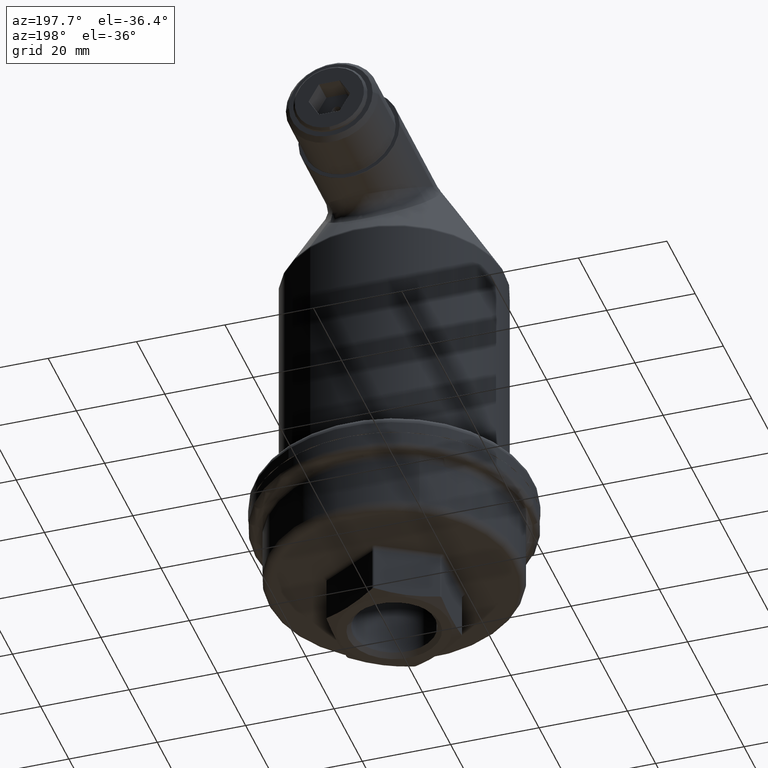
[diagram: clean part render]
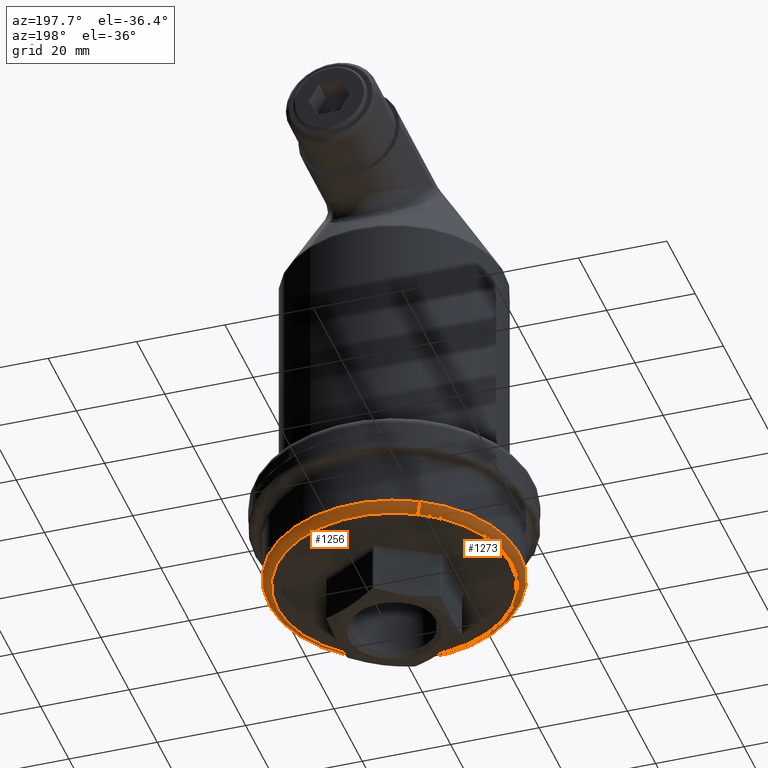
[diagram: same view with one multi-face feature highlighted, each face labeled with its STEP entity id]
A machine part, auxiliary view. The highlighted faces form ONE feature: a constant-radius fillet chain: 2 tangent blend faces with common blend radius 2 mm. The faces share edges in the B-rep.
Their STEP definitions:
[1] entity #1256 (Torus):
#1204=AXIS2_PLACEMENT_3D('Circle Axis2P3D',#1202,#1203,$) ;
#1229=AXIS2_PLACEMENT_3D('Torus Axis2P3D',#1226,#1227,#1228) ;
#1233=AXIS2_PLACEMENT_3D('Circle Axis2P3D',#1231,#1232,$) ;
#1240=AXIS2_PLACEMENT_3D('Circle Axis2P3D',#1238,#1239,$) ;
#1247=AXIS2_PLACEMENT_3D('Circle Axis2P3D',#1245,#1246,$) ;
#1197=CARTESIAN_POINT('Vertex',(-12.704776773,23.2559378901,12.)) ;
#1199=CARTESIAN_POINT('Vertex',(12.7047768322,-23.2559378578,12.)) ;
#1202=CARTESIAN_POINT('Axis2P3D Location',(-2.77555756156E-016,-4.82947015712E-015,12.)) ;
#1226=CARTESIAN_POINT('Axis2P3D Location',(3.5527136788E-015,-5.3290705182E-015,14.)) ;
#1231=CARTESIAN_POINT('Axis2P3D Location',(12.7047767747,-23.2559378892,14.)) ;
#1235=CARTESIAN_POINT('Vertex',(13.6636278502,-25.0111030139,14.)) ;
#1238=CARTESIAN_POINT('Axis2P3D Location',(-12.704776773,23.2559378901,14.)) ;
#1242=CARTESIAN_POINT('Vertex',(-13.6636278502,25.0111030139,14.)) ;
#1245=CARTESIAN_POINT('Axis2P3D Location',(3.5527136788E-015,-5.3290705182E-015,14.)) ;
#1203=DIRECTION('Axis2P3D Direction',(0.,0.,1.)) ;
#1227=DIRECTION('Axis2P3D Direction',(0.,0.,1.)) ;
#1228=DIRECTION('Axis2P3D XDirection',(0.00337020276418,-0.999994320851,0.)) ;
#1232=DIRECTION('Axis2P3D Direction',(-0.877582561855,-0.479425538668,0.)) ;
#1239=DIRECTION('Axis2P3D Direction',(0.87758256189,0.479425538604,-0.)) ;
#1246=DIRECTION('Axis2P3D Direction',(0.,0.,1.)) ;
#1251=ORIENTED_EDGE('',*,*,#1237,.T.) ;
#1252=ORIENTED_EDGE('',*,*,#1206,.T.) ;
#1253=ORIENTED_EDGE('',*,*,#1244,.F.) ;
#1254=ORIENTED_EDGE('',*,*,#1249,.F.) ;
#1256=ADVANCED_FACE('Hauptk\X2\00F6\X0\rper',(#1255),#1230,.T.) ;
#1205=CIRCLE('generated circle',#1204,26.5) ;
#1234=CIRCLE('generated circle',#1233,2.) ;
#1241=CIRCLE('generated circle',#1240,2.) ;
#1248=CIRCLE('generated circle',#1247,28.5) ;
#1230=TOROIDAL_SURFACE('homeo Torus',#1229,26.5,2.) ;
#1206=EDGE_CURVE('',#1200,#1198,#1205,.T.) ;
#1237=EDGE_CURVE('',#1236,#1200,#1234,.F.) ;
#1244=EDGE_CURVE('',#1243,#1198,#1241,.F.) ;
#1249=EDGE_CURVE('',#1236,#1243,#1248,.T.) ;
#1250=EDGE_LOOP('',(#1251,#1252,#1253,#1254)) ;
#1255=FACE_OUTER_BOUND('',#1250,.T.) ;
#1198=VERTEX_POINT('',#1197) ;
#1200=VERTEX_POINT('',#1199) ;
#1236=VERTEX_POINT('',#1235) ;
#1243=VERTEX_POINT('',#1242) ;
[2] entity #1273 (Torus):
#1195=AXIS2_PLACEMENT_3D('Circle Axis2P3D',#1193,#1194,$) ;
#1233=AXIS2_PLACEMENT_3D('Circle Axis2P3D',#1231,#1232,$) ;
#1240=AXIS2_PLACEMENT_3D('Circle Axis2P3D',#1238,#1239,$) ;
#1260=AXIS2_PLACEMENT_3D('Torus Axis2P3D',#1257,#1258,#1259) ;
#1264=AXIS2_PLACEMENT_3D('Circle Axis2P3D',#1262,#1263,$) ;
#1193=CARTESIAN_POINT('Axis2P3D Location',(-1.33226762955E-015,2.22044604925E-015,12.)) ;
#1197=CARTESIAN_POINT('Vertex',(-12.704776773,23.2559378901,12.)) ;
#1199=CARTESIAN_POINT('Vertex',(12.7047768322,-23.2559378578,12.)) ;
#1231=CARTESIAN_POINT('Axis2P3D Location',(12.7047767747,-23.2559378892,14.)) ;
#1235=CARTESIAN_POINT('Vertex',(13.6636278502,-25.0111030139,14.)) ;
#1238=CARTESIAN_POINT('Axis2P3D Location',(-12.704776773,23.2559378901,14.)) ;
#1242=CARTESIAN_POINT('Vertex',(-13.6636278502,25.0111030139,14.)) ;
#1257=CARTESIAN_POINT('Axis2P3D Location',(3.5527136788E-015,-3.5527136788E-015,14.)) ;
#1262=CARTESIAN_POINT('Axis2P3D Location',(3.5527136788E-015,-3.5527136788E-015,14.)) ;
#1194=DIRECTION('Axis2P3D Direction',(0.,0.,1.)) ;
#1232=DIRECTION('Axis2P3D Direction',(-0.877582561855,-0.479425538668,0.)) ;
#1239=DIRECTION('Axis2P3D Direction',(0.87758256189,0.479425538604,-0.)) ;
#1258=DIRECTION('Axis2P3D Direction',(0.,-0.,1.)) ;
#1259=DIRECTION('Axis2P3D XDirection',(-0.479425538604,0.87758256189,0.)) ;
#1263=DIRECTION('Axis2P3D Direction',(0.,-0.,1.)) ;
#1268=ORIENTED_EDGE('',*,*,#1244,.T.) ;
#1269=ORIENTED_EDGE('',*,*,#1201,.T.) ;
#1270=ORIENTED_EDGE('',*,*,#1237,.F.) ;
#1271=ORIENTED_EDGE('',*,*,#1266,.F.) ;
#1273=ADVANCED_FACE('Hauptk\X2\00F6\X0\rper',(#1272),#1261,.T.) ;
#1196=CIRCLE('generated circle',#1195,26.5) ;
#1234=CIRCLE('generated circle',#1233,2.) ;
#1241=CIRCLE('generated circle',#1240,2.) ;
#1265=CIRCLE('generated circle',#1264,28.5) ;
#1261=TOROIDAL_SURFACE('homeo Torus',#1260,26.5,2.) ;
#1201=EDGE_CURVE('',#1198,#1200,#1196,.T.) ;
#1237=EDGE_CURVE('',#1236,#1200,#1234,.F.) ;
#1244=EDGE_CURVE('',#1243,#1198,#1241,.F.) ;
#1266=EDGE_CURVE('',#1243,#1236,#1265,.T.) ;
#1267=EDGE_LOOP('',(#1268,#1269,#1270,#1271)) ;
#1272=FACE_OUTER_BOUND('',#1267,.T.) ;
#1198=VERTEX_POINT('',#1197) ;
#1200=VERTEX_POINT('',#1199) ;
#1236=VERTEX_POINT('',#1235) ;
#1243=VERTEX_POINT('',#1242) ;